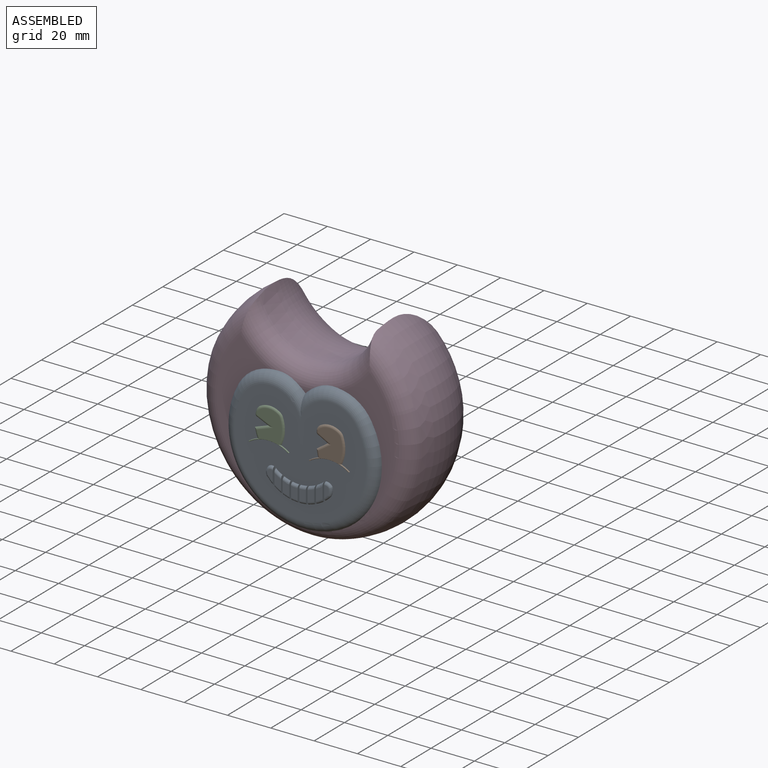
[diagram: assembled view]
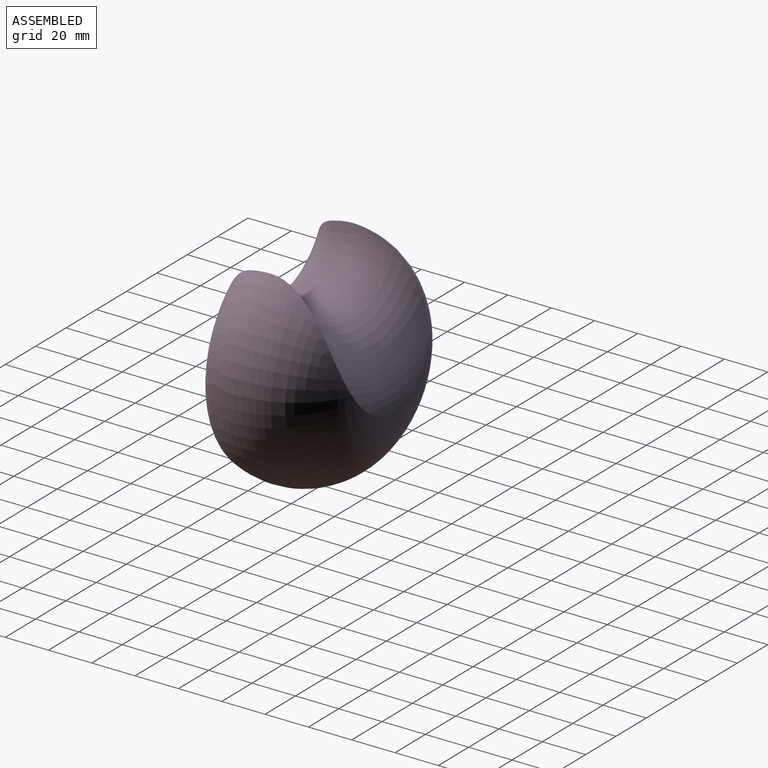
[diagram: assembled view, second angle]
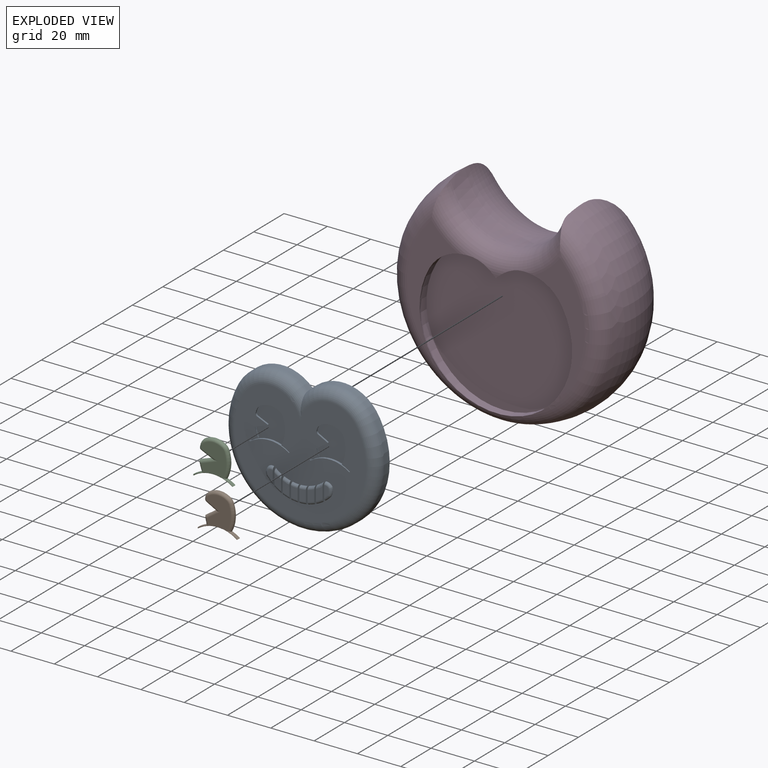
[diagram: exploded view]
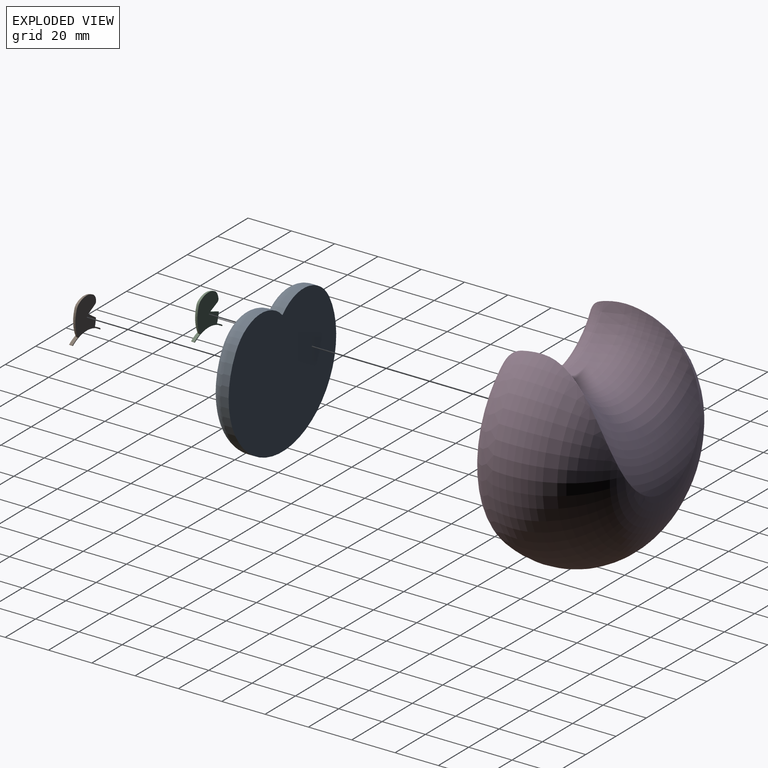
[diagram: exploded view, second angle]
ASSEMBLY  parts=4 mates=3
PART A: 98 faces, bbox 76.9x9.6x67.7 mm
  f0: plane 60.78x52.94mm, normal (0,-1,0), area 2071.7mm2, adj f4,f5,f6,f7,f8,f9,f13,f14
  f1: plane 5.27x3.05mm, normal (0,-1,0), area 15.1mm2, adj f4,f7,f36,f49
  f2: plane 5.87x3.05mm, normal (0,-1,0), area 14.8mm2, adj f5,f8,f47,f48
  f3: plane 6.6x3.05mm, normal (0,-1,0), area 14.4mm2, adj f6,f9,f44,f46
  f4: torus R=17.98mm, axis (0,1,0), area 5.7mm2, adj f0,f1,f36,f49
  f5: torus R=17.98mm, axis (0,1,0), area 5.9mm2, adj f0,f2,f47,f48
  f6: torus R=17.98mm, axis (0,1,0), area 6.6mm2, adj f0,f3,f44,f46
  f7: torus R=18.59mm, axis (0,-1,0), area 5.6mm2, adj f0,f1,f36,f49
  f8: torus R=18.59mm, axis (0,-1,0), area 6mm2, adj f0,f2,f47,f48
  f9: torus R=18.59mm, axis (0,-1,0), area 6.6mm2, adj f0,f3,f44,f46
  f10: plane 6.05x3.05mm, normal (0,-1,0), area 15.3mm2, adj f13,f16,f41,f43
  f11: plane 6.93x3.05mm, normal (0,-1,0), area 15.3mm2, adj f14,f17,f39,f40
  f12: plane 5.13x2.01mm, normal (0,-1,0), area 7.7mm2, adj f15,f18,f19,f33,f38
  f13: torus R=17.98mm, axis (0,1,0), area 5.9mm2, adj f0,f10,f41,f43
  f14: torus R=17.98mm, axis (0,1,0), area 6.5mm2, adj f0,f11,f39,f40
  f15: torus R=17.98mm, axis (0,1,0), area 5.3mm2, adj f0,f12,f33,f38
  f16: torus R=18.59mm, axis (0,-1,0), area 6mm2, adj f0,f10,f41,f43
  f17: torus R=18.59mm, axis (0,-1,0), area 6.7mm2, adj f0,f11,f39,f40
  f18: torus R=18.59mm, axis (0,-1,0), area 0mm2, adj f12,f19,f38
  f19: torus R=1.72mm, axis (0,1,0), area 5.8mm2, adj f0,f12,f18,f33,f38
  f20: plane 5.34x3.05mm, normal (0,-1,0), area 15.3mm2, adj f21,f22,f37,f42
  f21: torus R=17.98mm, axis (0,1,0), area 5.7mm2, adj f0,f20,f37,f42
  f22: torus R=18.59mm, axis (0,-1,0), area 5.6mm2, adj f0,f20,f37,f42
  f23: cylinder r=19.46mm len=30.83mm, axis (0,1,0), area 119.9mm2, adj f24,f25,f26,f27
  f24: cylinder r=35.47mm len=70.94mm, axis (0,1,0), area 492.9mm2, adj f23,f25,f26,f29
  f25: cylinder r=19.13mm len=30.83mm, axis (0,1,0), area 120.8mm2, adj f23,f24,f26,f28
  f26: plane 70.94x63.1mm, normal (0,1,0), area 3634.6mm2, adj f23,f24,f25
  f27: torus R=14.38mm, axis (0,-1,0), area 278.6mm2, adj f0,f23,f28,f29
  f28: torus R=14.05mm, axis (0,-1,0), area 280.4mm2, adj f0,f25,f27,f29
  f29: torus R=30.39mm, axis (0,-1,0), area 1120.8mm2, adj f0,f24,f27,f28
  f30: plane 5.04x2.42mm, normal (0,-1,0), area 8.4mm2, adj f31,f32,f34,f35,f45
  f31: torus R=17.98mm, axis (0,1,0), area 6.8mm2, adj f0,f30,f32,f45
  f32: torus R=1.58mm, axis (0,1,0), area 5.6mm2, adj f0,f30,f31,f34
  f33: torus R=4.35mm, axis (0,1,0), area 6.9mm2, adj f0,f12,f15,f19
  f34: torus R=1.3mm, axis (0,1,0), area 6.1mm2, adj f0,f30,f32,f35,f45
  f35: torus R=18.59mm, axis (0,-1,0), area 0.3mm2, adj f30,f34,f45
  f36: plane 7.52x1.13mm, normal (1,0,0), area 7.7mm2, adj f0,f1,f4,f7
  f37: plane 7.53x1.13mm, normal (-1,0,0), area 7.7mm2, adj f0,f20,f21,f22
  f38: plane 7.99x1.12mm, normal (-1,0,0), area 8.1mm2, adj f0,f12,f15,f18,f19
  f39: plane 8.2x1.12mm, normal (1,0,0), area 8.3mm2, adj f0,f11,f14,f17
  f40: plane 7.85x1.12mm, normal (-1,0,0), area 8mm2, adj f0,f11,f14,f17
  f41: plane 7.79x1.12mm, normal (1,0,0), area 8mm2, adj f0,f10,f13,f16
  f42: plane 7.68x1.21mm, normal (1,0,0), area 7.8mm2, adj f0,f20,f21,f22
  f43: plane 7.72x1.22mm, normal (-1,0,0), area 7.8mm2, adj f0,f10,f13,f16
  f44: plane 7.81x1.12mm, normal (-1,0,0), area 7.9mm2, adj f0,f3,f6,f9
  f45: plane 7.86x1.18mm, normal (1,0,0), area 7.9mm2, adj f0,f30,f31,f34,f35
  f46: plane 7.6x1.12mm, normal (1,0,0), area 7.8mm2, adj f0,f3,f6,f9
  f47: plane 7.57x1.12mm, normal (-1,0,0), area 7.7mm2, adj f0,f2,f5,f8
  f48: plane 7.59x1.21mm, normal (1,0,0), area 7.7mm2, adj f0,f2,f5,f8
  f49: plane 7.59x1.21mm, normal (-1,0,0), area 7.7mm2, adj f0,f1,f4,f7
  f50: cylinder r=3.72mm len=2.21mm, axis (0,1,0), area 1.1mm2, adj f51,f62,f63,f67
  f51: cylinder r=8.78mm len=9.09mm, axis (0,1,0), area 3.6mm2, adj f50,f52,f63,f66
  f52: cylinder r=4.43mm len=2.21mm, axis (0,1,0), area 1.1mm2, adj f51,f53,f63,f65
  f53: cylinder r=30.82mm len=1.05mm, axis (0,1,0), area 0.4mm2, adj f52,f63,f64,f73
  f54: plane 4.4x2.33mm, normal (0.47,0,0.88), area 1.9mm2, adj f55,f63,f71,f73
  f55: plane 5.01x3.42mm, normal (0.56,0,-0.83), area 2.3mm2, adj f54,f56,f63,f70
  f56: cylinder r=30.82mm len=3.71mm, axis (0,1,0), area 1.4mm2, adj f55,f57,f63,f69
  f57: cylinder r=16.18mm len=3.89mm, axis (0,1,0), area 4.5mm2, adj f0,f56,f58,f63,f69
  f58: plane 1.07x0.44mm, normal (0.91,0,0.42), area 0.5mm2, adj f0,f57,f59,f63
  f59: cylinder r=15.34mm len=18.02mm, axis (0,1,0), area 20.6mm2, adj f0,f58,f60,f63
  f60: plane 1.07x0.32mm, normal (-0.63,0,0.77), area 0.4mm2, adj f0,f59,f61,f63
  f61: cylinder r=16.18mm len=3.83mm, axis (0,1,0), area 4.5mm2, adj f0,f60,f62,f63,f68
  f62: cylinder r=14.8mm len=11.88mm, axis (0,1,0), area 4.7mm2, adj f50,f61,f63,f68
  f63: plane 18.55x17.57mm, normal (0,-1,0), area 171.8mm2, adj f50,f51,f52,f53,f54,f55,f56,f57
  f64: torus R=29.55mm, axis (0,-1,0), area 0.8mm2, adj f0,f53,f65,f72
  f65: torus R=3.16mm, axis (0,-1,0), area 2mm2, adj f0,f52,f64,f66
  f66: torus R=7.51mm, axis (0,-1,0), area 6.9mm2, adj f0,f51,f65,f67
  f67: torus R=2.45mm, axis (0,-1,0), area 2.1mm2, adj f0,f50,f66,f68
  f68: torus R=13.53mm, axis (0,-1,0), area 8.9mm2, adj f0,f61,f62,f67
  f69: torus R=29.55mm, axis (0,-1,0), area 2.7mm2, adj f0,f56,f57,f70
  f70: cylinder r=1.27mm len=5.4mm, axis (0.83,0,0.56), area 4.4mm2, adj f0,f55,f69,f71
  f71: cylinder r=1.27mm len=4.79mm, axis (-0.88,0,0.47), area 3.7mm2, adj f0,f54,f70,f72
  f72: sphere r=1.27mm, area 1mm2, adj f0,f64,f71,f73
  f73: cylinder r=1.27mm len=1.26mm, axis (0,1,0), area 0.6mm2, adj f53,f54,f63,f72
  f74: plane 18.55x17.57mm, normal (0,-1,0), area 178.4mm2, adj f75,f76,f77,f78,f79,f80,f81,f82
  f75: cylinder r=8.78mm len=9.09mm, axis (0,1,0), area 3.6mm2, adj f74,f76,f85,f90
  f76: cylinder r=4.43mm len=2.21mm, axis (0,1,0), area 1.1mm2, adj f74,f75,f77,f89
  f77: cylinder r=16.27mm len=1.49mm, axis (0,1,0), area 0.6mm2, adj f74,f76,f88,f97
  f78: plane 4.79x2.13mm, normal (0.41,0,0.91), area 2mm2, adj f74,f79,f95,f97
  f79: plane 5.78x2.09mm, normal (0.34,0,-0.94), area 2.3mm2, adj f74,f78,f80,f94
  f80: cylinder r=16.27mm len=4.61mm, axis (0,1,0), area 1.8mm2, adj f74,f79,f81,f93
  f81: cylinder r=16.18mm len=3.89mm, axis (0,1,0), area 4.5mm2, adj f0,f74,f80,f82,f93
  f82: plane 1.07x0.44mm, normal (0.91,0,0.42), area 0.5mm2, adj f0,f74,f81,f83
  f83: cylinder r=15.34mm len=18.02mm, axis (0,1,0), area 20.6mm2, adj f0,f74,f82,f84
  f84: plane 1.07x0.32mm, normal (-0.63,0,0.77), area 0.4mm2, adj f0,f74,f83,f86
  f85: cylinder r=3.72mm len=2.21mm, axis (0,1,0), area 1.1mm2, adj f74,f75,f87,f91
  f86: cylinder r=16.18mm len=3.83mm, axis (0,1,0), area 4.5mm2, adj f0,f74,f84,f87,f92
  f87: cylinder r=14.8mm len=11.88mm, axis (0,1,0), area 4.7mm2, adj f74,f85,f86,f92
  f88: torus R=15mm, axis (0,-1,0), area 1.1mm2, adj f0,f77,f89,f96
  f89: torus R=3.16mm, axis (0,-1,0), area 2mm2, adj f0,f76,f88,f90
  f90: torus R=7.51mm, axis (0,-1,0), area 6.9mm2, adj f0,f75,f89,f91
  f91: torus R=2.45mm, axis (0,-1,0), area 2.1mm2, adj f0,f85,f90,f92
  f92: torus R=13.53mm, axis (0,-1,0), area 8.9mm2, adj f0,f86,f87,f91
  f93: torus R=15mm, axis (0,-1,0), area 3.4mm2, adj f0,f80,f81,f94
  f94: cylinder r=1.27mm len=6.32mm, axis (0.94,0,0.34), area 4.5mm2, adj f0,f79,f93,f95
  f95: cylinder r=1.27mm len=5.32mm, axis (-0.91,0,0.41), area 3.9mm2, adj f0,f78,f94,f96
  f96: sphere r=1.27mm, area 1.2mm2, adj f0,f88,f95,f97
  f97: cylinder r=1.27mm len=1.44mm, axis (0,1,0), area 0.7mm2, adj f74,f77,f78,f96
PART B: 30 faces, bbox 19.8x1.7x18.3 mm
  f0: cylinder r=3.72mm len=2.21mm, axis (0,1,0), area 1.1mm2, adj f1,f12,f14,f18
  f1: cylinder r=8.78mm len=9.09mm, axis (0,1,0), area 3.6mm2, adj f0,f2,f14,f17
  f2: cylinder r=4.43mm len=2.21mm, axis (0,1,0), area 1.1mm2, adj f1,f3,f14,f16
  f3: cylinder r=30.82mm len=1.05mm, axis (0,1,0), area 0.4mm2, adj f2,f14,f15,f29
  f4: plane 4.4x2.33mm, normal (-0.47,0,-0.88), area 1.9mm2, adj f5,f14,f27,f29
  f5: plane 5.01x3.42mm, normal (-0.56,0,0.83), area 2.3mm2, adj f4,f6,f14,f26
  f6: cylinder r=30.82mm len=3.71mm, axis (0,1,0), area 1.4mm2, adj f5,f7,f14,f25
  f7: cylinder r=16.18mm len=4.39mm, axis (0,1,0), area 6.6mm2, adj f6,f8,f14,f20,f25
  f8: plane 1.52x0.44mm, normal (-0.91,0,-0.42), area 0.7mm2, adj f7,f9,f14,f21
  f9: cylinder r=15.34mm len=18.02mm, axis (0,1,0), area 29.4mm2, adj f8,f10,f14,f22
  f10: plane 1.52x0.32mm, normal (0.63,0,-0.77), area 0.6mm2, adj f9,f11,f14,f24
  f11: cylinder r=16.18mm len=4.32mm, axis (0,1,0), area 6.5mm2, adj f10,f12,f14,f19,f23
  f12: cylinder r=14.8mm len=11.88mm, axis (0,1,0), area 4.7mm2, adj f0,f11,f14,f19
  f13: plane 18.18x16.14mm, normal (0,-1,0), area 112.9mm2, adj f15,f16,f17,f18,f19,f20,f21,f22
  f14: plane 18.55x17.57mm, normal (0,1,0), area 171.8mm2, adj f0,f1,f2,f3,f4,f5,f6,f7
  f15: torus R=29.55mm, axis (0,-1,0), area 2mm2, adj f3,f13,f16,f28
  f16: torus R=3.16mm, axis (0,-1,0), area 5mm2, adj f2,f13,f15,f17
  f17: torus R=7.51mm, axis (0,-1,0), area 18.1mm2, adj f1,f13,f16,f18
  f18: torus R=2.45mm, axis (0,-1,0), area 5.2mm2, adj f0,f13,f17,f19
  f19: torus R=13.53mm, axis (0,-1,0), area 23.9mm2, adj f11,f12,f13,f18,f23
  f20: torus R=16.05mm, axis (0,-1,0), area 1mm2, adj f7,f13,f21,f25
  f21: cylinder r=0.13mm len=0.49mm, axis (-0.42,0,0.91), area 0.1mm2, adj f8,f13,f20,f22
  f22: torus R=15.47mm, axis (0,-1,0), area 3.8mm2, adj f9,f13,f21,f24
  f23: torus R=16.05mm, axis (0,-1,0), area 1mm2, adj f11,f13,f19,f24
  f24: cylinder r=0.13mm len=0.4mm, axis (-0.77,0,-0.63), area 0.1mm2, adj f10,f13,f22,f23
  f25: torus R=29.55mm, axis (0,-1,0), area 6.8mm2, adj f6,f7,f13,f20,f26
  f26: cylinder r=1.27mm len=7.47mm, axis (0.83,0,0.56), area 13.1mm2, adj f5,f13,f25,f27
  f27: cylinder r=1.27mm len=6.85mm, axis (-0.88,0,0.47), area 11.5mm2, adj f4,f13,f26,f28
  f28: sphere r=1.27mm, area 1.9mm2, adj f15,f27,f29
  f29: cylinder r=1.27mm len=1.26mm, axis (0,1,0), area 0.6mm2, adj f3,f4,f14,f28
PART C: 30 faces, bbox 19.8x1.7x18.3 mm
  f0: plane 18.55x17.57mm, normal (0,1,0), area 178.4mm2, adj f1,f2,f3,f4,f5,f6,f7,f8
  f1: cylinder r=8.78mm len=9.09mm, axis (0,1,0), area 3.6mm2, adj f0,f2,f12,f17
  f2: cylinder r=4.43mm len=2.21mm, axis (0,1,0), area 1.1mm2, adj f0,f1,f3,f16
  f3: cylinder r=16.27mm len=1.49mm, axis (0,1,0), area 0.6mm2, adj f0,f2,f15,f29
  f4: plane 4.79x2.13mm, normal (-0.41,0,-0.91), area 2mm2, adj f0,f5,f27,f29
  f5: plane 5.78x2.09mm, normal (-0.34,0,0.94), area 2.3mm2, adj f0,f4,f6,f26
  f6: cylinder r=16.27mm len=4.61mm, axis (0,1,0), area 1.8mm2, adj f0,f5,f7,f25
  f7: cylinder r=16.18mm len=4.39mm, axis (0,1,0), area 6.6mm2, adj f0,f6,f8,f20,f25
  f8: plane 1.52x0.44mm, normal (-0.91,0,-0.42), area 0.7mm2, adj f0,f7,f9,f21
  f9: cylinder r=15.34mm len=18.02mm, axis (0,1,0), area 29.4mm2, adj f0,f8,f10,f22
  f10: plane 1.52x0.32mm, normal (0.63,0,-0.77), area 0.6mm2, adj f0,f9,f13,f24
  f11: plane 18.18x16.14mm, normal (0,-1,0), area 115.9mm2, adj f15,f16,f17,f18,f19,f20,f21,f22
  f12: cylinder r=3.72mm len=2.21mm, axis (0,1,0), area 1.1mm2, adj f0,f1,f14,f18
  f13: cylinder r=16.18mm len=4.32mm, axis (0,1,0), area 6.5mm2, adj f0,f10,f14,f19,f23
  f14: cylinder r=14.8mm len=11.88mm, axis (0,1,0), area 4.7mm2, adj f0,f12,f13,f19
  f15: torus R=15mm, axis (0,-1,0), area 3mm2, adj f3,f11,f16,f28
  f16: torus R=3.16mm, axis (0,-1,0), area 5.1mm2, adj f2,f11,f15,f17
  f17: torus R=7.51mm, axis (0,-1,0), area 18.1mm2, adj f1,f11,f16,f18
  f18: torus R=2.45mm, axis (0,-1,0), area 5.2mm2, adj f11,f12,f17,f19
  f19: torus R=13.53mm, axis (0,-1,0), area 23.9mm2, adj f11,f13,f14,f18,f23
  f20: torus R=16.05mm, axis (0,-1,0), area 1mm2, adj f7,f11,f21,f25
  f21: cylinder r=0.13mm len=0.49mm, axis (-0.42,0,0.91), area 0.1mm2, adj f8,f11,f20,f22
  f22: torus R=15.47mm, axis (0,-1,0), area 3.8mm2, adj f9,f11,f21,f24
  f23: torus R=16.05mm, axis (0,-1,0), area 1mm2, adj f11,f13,f19,f24
  f24: cylinder r=0.13mm len=0.4mm, axis (-0.77,0,-0.63), area 0.1mm2, adj f10,f11,f22,f23
  f25: torus R=15mm, axis (0,-1,0), area 8.7mm2, adj f6,f7,f11,f20,f26
  f26: cylinder r=1.27mm len=9.18mm, axis (0.94,0,0.34), area 13.8mm2, adj f5,f11,f25,f27
  f27: cylinder r=1.27mm len=8.18mm, axis (-0.91,0,0.41), area 12.7mm2, adj f4,f11,f26,f28
  f28: sphere r=1.27mm, area 2.2mm2, adj f15,f27,f29
  f29: cylinder r=1.27mm len=1.44mm, axis (0,1,0), area 0.7mm2, adj f0,f3,f4,f28
PART D: 17 faces, bbox 192.1x85.1x99.3 mm
  f0: plane 3.41x1.62mm, normal (0,-1,0), area 2.6mm2, adj f7,f14,f15
  f1: plane 57.17x23.74mm, normal (0,-1,0), area 393.2mm2, adj f6,f7,f15,f16
  f2: sphere r=52.3mm, area 694mm2, adj f6,f7,f9
  f3: plane 57.17x24.08mm, normal (0,-1,0), area 395.7mm2, adj f6,f7,f14,f16
  f4: cylinder r=28.34mm len=54.95mm, axis (0,-1,0), area 725.8mm2, adj f7,f8,f9
  f5: plane 6.07x0.32mm, normal (0,1,0), area 1mm2, adj f8,f9
  f6: torus R=41.1mm, axis (0,-1,0), area 2346.6mm2, adj f1,f2,f3,f7,f16
  f7: torus R=37.23mm, axis (0,-1,0), area 928.5mm2, adj f0,f1,f2,f3,f4,f6,f9,f14
  f8: torus R=65.3mm, axis (0,-1,0), area 3717.1mm2, adj f4,f5,f9
  f9: torus R=14.76mm, axis (0,-1,0), area 12679.9mm2, adj f2,f4,f5,f7,f8
  f10: cylinder r=19.46mm len=30.83mm, axis (0,1,0), area 119.9mm2, adj f11,f12,f13,f14
  f11: cylinder r=35.47mm len=70.94mm, axis (0,1,0), area 492.9mm2, adj f10,f12,f13,f16
  f12: cylinder r=19.13mm len=30.83mm, axis (0,1,0), area 120.8mm2, adj f10,f11,f13,f15
  f13: plane 70.94x63.1mm, normal (0,-1,0), area 3634.6mm2, adj f10,f11,f12
  f14: torus R=14.38mm, axis (0,-1,0), area 52.2mm2, adj f0,f3,f7,f10,f15,f16
  f15: torus R=14.05mm, axis (0,-1,0), area 51.9mm2, adj f0,f1,f7,f12,f14,f16
  f16: torus R=30.39mm, axis (0,-1,0), area 201.2mm2, adj f1,f3,f6,f11,f14,f15
PLACE A at identity
PLACE B at identity
PLACE C at identity
PLACE D at identity
MATE revolute B.f14 <-> A.f63  axis (0,1,0) through (12.49,-25.36,-4.08)mm
MATE revolute A.f24 <-> D.f11  axis (0,1,0) through (0,-18.02,-9.25)mm
MATE revolute C.f0 <-> A.f74  axis (0,1,0) through (-15.22,-25.36,-3.93)mm
